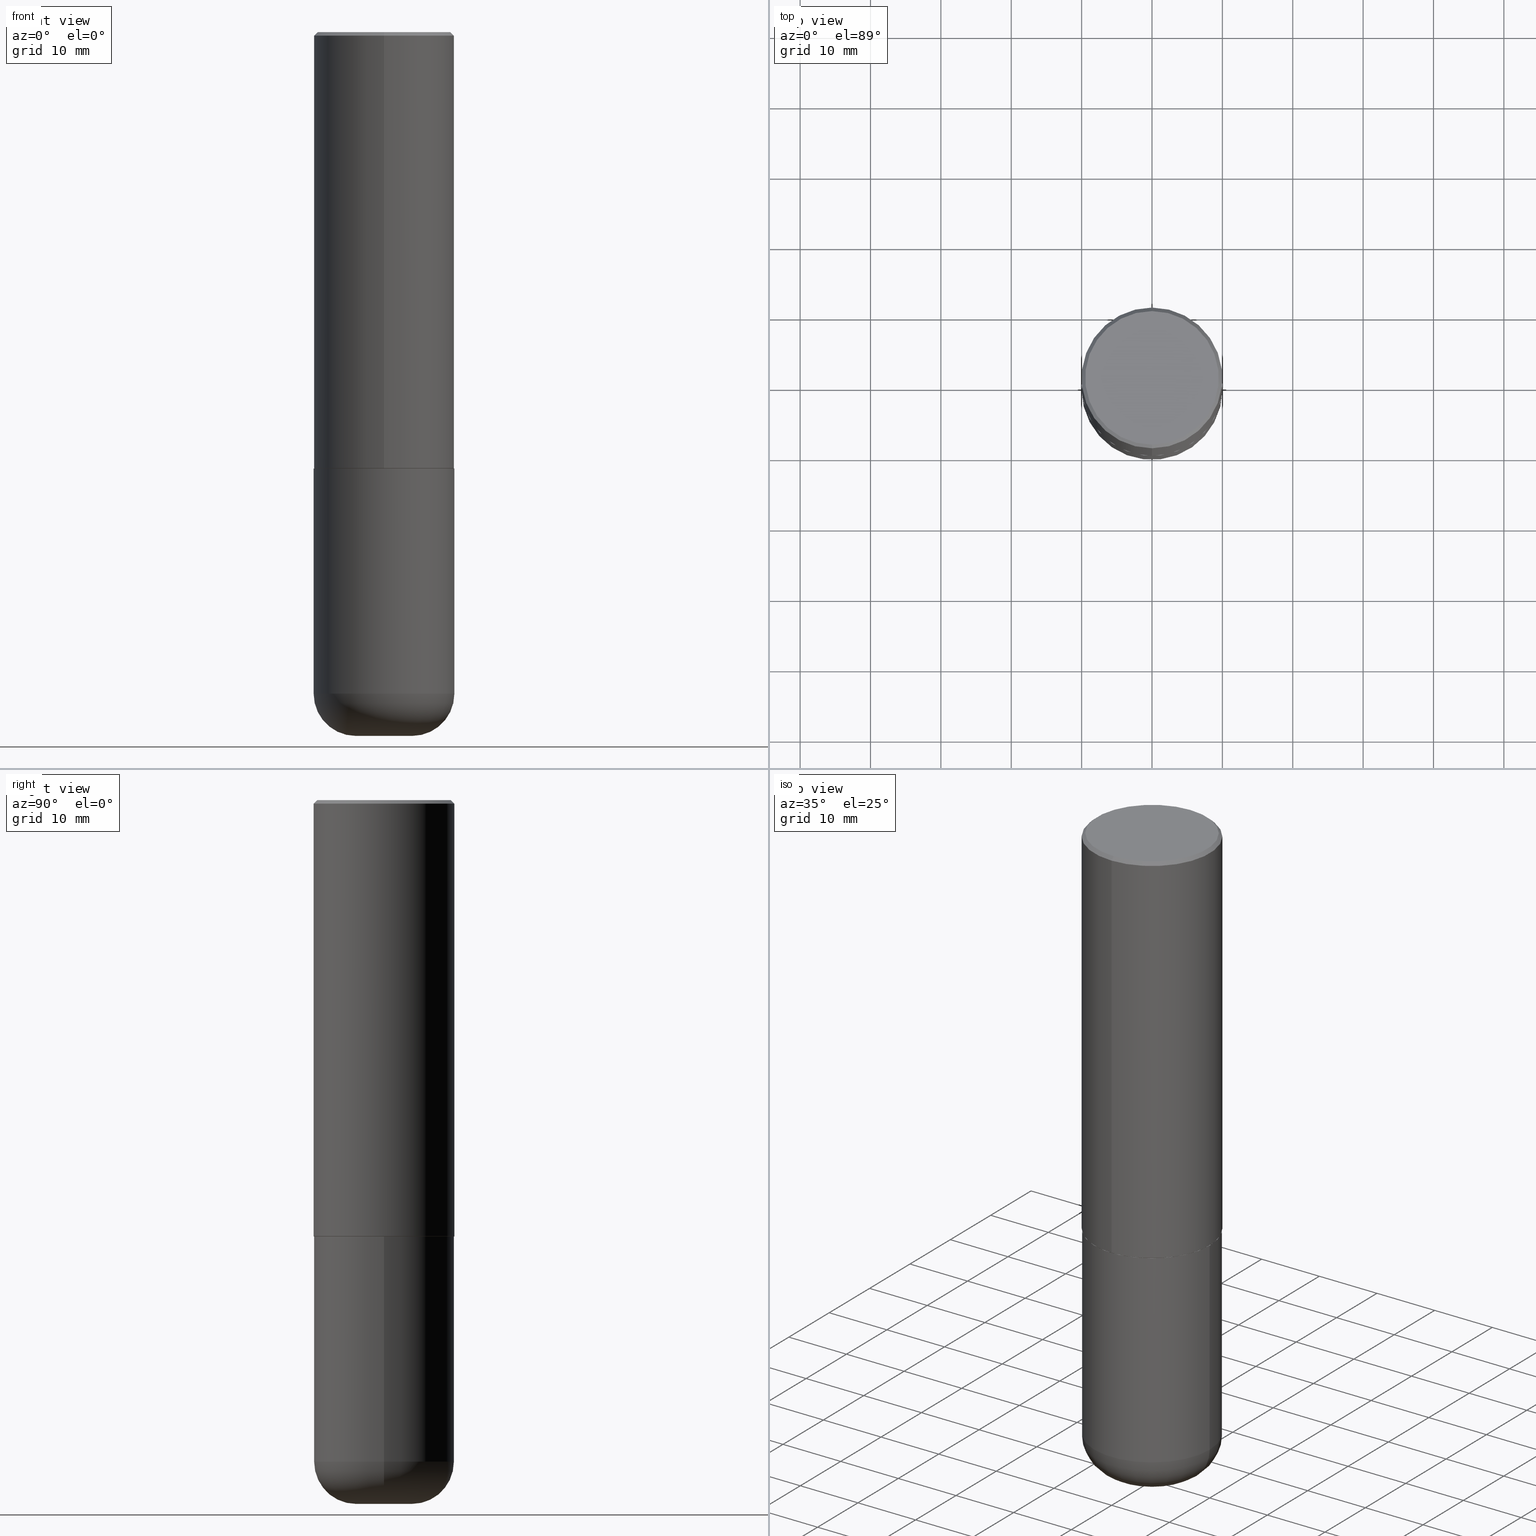
[diagram: canonical four-view strip — front | top / right | iso, engineering-drawing reading convention]
A machine part, canonical four-view strip (front | top / right | iso — engineering-drawing reading convention). The complete STEP part file that produces these views, byte-faithful:
ISO-10303-21;
HEADER;
FILE_DESCRIPTION (( 'STEP AP203' ),
    '1' );
FILE_NAME ('42648.STEP',
    '2024-03-03T22:42:33',
    ( '' ),
    ( '' ),
    'SwSTEP 2.0',
    'SolidWorks 2023',
    '' );
FILE_SCHEMA (( 'CONFIG_CONTROL_DESIGN' ));
ENDSEC;

DATA;
#1 = DIRECTION ( 'NONE',  ( -2.445468806185136597E-29, 3.491481338843145583E-15, 1.000000000000000000 ) ) ;
#2 = DIRECTION ( 'NONE',  ( 6.982962677686265133E-15, 1.000000000000000000, -3.491137977679279424E-15 ) ) ;
#3 = DIRECTION ( 'NONE',  ( 1.000000000000000000, -6.982962677686269866E-15, 0.000000000000000000 ) ) ;
#4 = DIRECTION ( 'NONE',  ( 1.000000000000000000, -6.982962677686268288E-15, 4.883557194083112901E-29 ) ) ;
#5 = TOROIDAL_SURFACE ( 'NONE', #405, 0.1575000000000000289, 0.2361999999999999933 ) ;
#6 = DIRECTION ( 'NONE',  ( -6.982962677686265133E-15, -1.000000000000000000, 3.478288761986584267E-15 ) ) ;
#7 = VERTEX_POINT ( 'NONE', #385 ) ;
#8 = CARTESIAN_POINT ( 'NONE',  ( 9.050190957929953666E-29, -1.292127413879071357E-14, -3.700800000000000090 ) ) ;
#9 = LINE ( 'NONE', #161, #166 ) ;
#10 = ADVANCED_FACE ( 'NONE', ( #221 ), #91, .F. ) ;
#11 = DIRECTION ( 'NONE',  ( -2.445468806185136597E-29, 3.491481338843145583E-15, 1.000000000000000000 ) ) ;
#12 = PERSON_AND_ORGANIZATION_ROLE ( 'classification_officer' ) ;
#13 = DIRECTION ( 'NONE',  ( 2.438088387897960049E-29, -3.491481338843145188E-15, -1.000000000000000000 ) ) ;
#14 = VECTOR ( 'NONE', #190, 39.37007874015748143 ) ;
#15 = CARTESIAN_POINT ( 'NONE',  ( -0.1575000000000000566, -1.137536230515325427E-14, -3.937000000000000277 ) ) ;
#16 = CARTESIAN_POINT ( 'NONE',  ( -2.742209443527336854E-15, -0.3927000000000085422, -2.440899999999999181 ) ) ;
#17 = FACE_OUTER_BOUND ( 'NONE', #312, .T. ) ;
#18 = CIRCLE ( 'NONE', #80, 0.3937000000000000499 ) ;
#19 = VECTOR ( 'NONE', #329, 39.37007874015748143 ) ;
#20 = AXIS2_PLACEMENT_3D ( 'NONE', #309, #266, #401 ) ;
#21 = ORIENTED_EDGE ( 'NONE', *, *, #23, .F. ) ;
#22 =( LENGTH_UNIT ( ) NAMED_UNIT ( * ) SI_UNIT ( $, .METRE. ) );
#23 = EDGE_CURVE ( 'NONE', #380, #294, #18, .T. ) ;
#24 = DIRECTION ( 'NONE',  ( 1.000000000000000000, -6.982962677686265133E-15, 0.000000000000000000 ) ) ;
#25 = AXIS2_PLACEMENT_3D ( 'NONE', #275, #410, #180 ) ;
#26 = ORIENTED_EDGE ( 'NONE', *, *, #290, .F. ) ;
#27 = DIRECTION ( 'NONE',  ( -6.982962677686265922E-15, -1.000000000000000000, 3.469453890861393995E-15 ) ) ;
#28 = EDGE_CURVE ( 'NONE', #57, #140, #346, .T. ) ;
#29 = DIRECTION ( 'NONE',  ( -2.445468806185136597E-29, 3.491481338843145583E-15, 1.000000000000000000 ) ) ;
#30 = DIRECTION ( 'NONE',  ( -2.446922510361644554E-29, 3.489399551722682834E-15, 1.000000000000000000 ) ) ;
#31 = APPROVAL_STATUS ( 'not_yet_approved' ) ;
#32 = ORIENTED_EDGE ( 'NONE', *, *, #28, .T. ) ;
#33 = CIRCLE ( 'NONE', #264, 0.2361999999999999933 ) ;
#34 = CARTESIAN_POINT ( 'NONE',  ( 9.627810689950883669E-29, -1.374596203102546341E-14, -3.937000000000000277 ) ) ;
#35 = ORIENTED_EDGE ( 'NONE', *, *, #53, .F. ) ;
#36 = ADVANCED_FACE ( 'NONE', ( #354 ), #141, .T. ) ;
#37 = COORDINATED_UNIVERSAL_TIME_OFFSET ( 5, 0, .BEHIND. ) ;
#38 = DIRECTION ( 'NONE',  ( -2.446922510361644554E-29, 3.489399551722683229E-15, 1.000000000000000000 ) ) ;
#39 = CIRCLE ( 'NONE', #207, 0.1575000000000000566 ) ;
#40 = DIRECTION ( 'NONE',  ( -1.000000000000000000, 6.982962677686265922E-15, -4.876176775795935793E-29 ) ) ;
#41 = EDGE_CURVE ( 'NONE', #85, #111, #33, .T. ) ;
#42 = COORDINATED_UNIVERSAL_TIME_OFFSET ( 5, 0, .BEHIND. ) ;
#43 = AXIS2_PLACEMENT_3D ( 'NONE', #202, #397, #72 ) ;
#44 =( NAMED_UNIT ( * ) PLANE_ANGLE_UNIT ( ) SI_UNIT ( $, .RADIAN. ) );
#45 = APPROVAL_PERSON_ORGANIZATION ( #327, #291, #399 ) ;
#46 = APPLICATION_CONTEXT ( 'configuration controlled 3d designs of mechanical parts and assemblies' ) ;
#47 = DATE_AND_TIME ( #239, #414 ) ;
#48 = FACE_OUTER_BOUND ( 'NONE', #372, .T. ) ;
#49 = EDGE_LOOP ( 'NONE', ( #276, #245 ) ) ;
#50 = CARTESIAN_POINT ( 'NONE',  ( 0.3937000000000000499, -1.127154920618731776E-14, -2.440900000000000070 ) ) ;
#51 = CONICAL_SURFACE ( 'NONE', #103, 0.3937000000000000499, 0.7853981633974461696 ) ;
#52 = EDGE_LOOP ( 'NONE', ( #333, #336, #21, #409 ) ) ;
#53 = EDGE_CURVE ( 'NONE', #89, #111, #404, .T. ) ;
#54 = PERSON_AND_ORGANIZATION ( #182, #332 ) ;
#55 = ORIENTED_EDGE ( 'NONE', *, *, #386, .F. ) ;
#56 = EDGE_LOOP ( 'NONE', ( #322, #208, #223, #35 ) ) ;
#57 = VERTEX_POINT ( 'NONE', #257 ) ;
#58 = CARTESIAN_POINT ( 'NONE',  ( 0.000000000000000000, 0.000000000000000000, 0.000000000000000000 ) ) ;
#59 = CARTESIAN_POINT ( 'NONE',  ( 0.3936999999999999389, -1.567046654499579837E-14, -3.700800000000000090 ) ) ;
#60 = AXIS2_PLACEMENT_3D ( 'NONE', #69, #416, #65 ) ;
#61 = ADVANCED_FACE ( 'NONE', ( #119 ), #374, .T. ) ;
#62 = AXIS2_PLACEMENT_3D ( 'NONE', #273, #110, #176 ) ;
#63 = CYLINDRICAL_SURFACE ( 'NONE', #319, 0.3936999999999999389 ) ;
#64 = COORDINATED_UNIVERSAL_TIME_OFFSET ( 5, 0, .BEHIND. ) ;
#65 = DIRECTION ( 'NONE',  ( -6.982962677686265133E-15, -1.000000000000000000, 3.491137977679279424E-15 ) ) ;
#66 = CC_DESIGN_DATE_AND_TIME_ASSIGNMENT ( #270, #295, ( #367 ) ) ;
#67 = CARTESIAN_POINT ( 'NONE',  ( 5.972693155541738897E-29, -8.517275365799897338E-15, -2.440900000000000514 ) ) ;
#68 = FACE_OUTER_BOUND ( 'NONE', #181, .T. ) ;
#69 = CARTESIAN_POINT ( 'NONE',  ( 4.893845020723310268E-31, -6.978799103445395153E-17, -0.02000000000000008715 ) ) ;
#70 = CIRCLE ( 'NONE', #212, 0.3736999999999999211 ) ;
#71 = CC_DESIGN_APPROVAL ( #291, ( #123 ) ) ;
#72 = DIRECTION ( 'NONE',  ( 1.000000000000000000, -6.982962677686267499E-15, 0.000000000000000000 ) ) ;
#73 = CARTESIAN_POINT ( 'NONE',  ( 5.972693155541738897E-29, -8.517275365799895761E-15, -2.440900000000000070 ) ) ;
#74 = PERSON_AND_ORGANIZATION_ROLE ( 'design_supplier' ) ;
#75 = CARTESIAN_POINT ( 'NONE',  ( -2.749192406205024841E-15, -0.3937000000000087652, -2.439899999999998847 ) ) ;
#76 = AXIS2_PLACEMENT_3D ( 'NONE', #289, #147, #282 ) ;
#77 = LOCAL_TIME ( 17, 42, 33.00000000000000000, #37 ) ;
#78 = CARTESIAN_POINT ( 'NONE',  ( -0.3936999999999999389, 2.797406750687513998E-15, -1.936584745033356455E-29 ) ) ;
#79 = PERSON_AND_ORGANIZATION ( #182, #332 ) ;
#80 = AXIS2_PLACEMENT_3D ( 'NONE', #349, #357, #390 ) ;
#81 = EDGE_CURVE ( 'NONE', #240, #213, #251, .T. ) ;
#82 = ORIENTED_EDGE ( 'NONE', *, *, #262, .F. ) ;
#83 = EDGE_LOOP ( 'NONE', ( #55, #375 ) ) ;
#84 = EDGE_LOOP ( 'NONE', ( #175, #271, #144, #415 ) ) ;
#85 = VERTEX_POINT ( 'NONE', #88 ) ;
#86 = ADVANCED_FACE ( 'NONE', ( #287 ), #155, .T. ) ;
#87 = ORIENTED_EDGE ( 'NONE', *, *, #148, .F. ) ;
#88 = CARTESIAN_POINT ( 'NONE',  ( 0.1575000000000000566, -1.484577865276105326E-14, -3.937000000000000277 ) ) ;
#89 = VERTEX_POINT ( 'NONE', #316 ) ;
#90 = APPROVAL_DATE_TIME ( #384, #138 ) ;
#91 = PLANE ( 'NONE',  #121 ) ;
#92 = DIRECTION ( 'NONE',  ( -2.445468806185136597E-29, 3.491481338843145583E-15, 1.000000000000000000 ) ) ;
#93 = ADVANCED_FACE ( 'NONE', ( #68 ), #314, .T. ) ;
#94 = DIRECTION ( 'NONE',  ( 5.024295867787719235E-15, 0.7071067811865017205, 0.7071067811865933139 ) ) ;
#95 = CARTESIAN_POINT ( 'NONE',  ( 0.3936999999999999389, -2.749192406205082822E-15, 1.919750796630859611E-29 ) ) ;
#96 = AXIS2_PLACEMENT_3D ( 'NONE', #134, #325, #263 ) ;
#97 = CARTESIAN_POINT ( 'NONE',  ( 2.797406750687514786E-15, 0.3937000000000001054, -1.373776603513220668E-15 ) ) ;
#98 = LINE ( 'NONE', #232, #220 ) ;
#99 = EDGE_CURVE ( 'NONE', #111, #380, #194, .T. ) ;
#100 = COORDINATED_UNIVERSAL_TIME_OFFSET ( 5, 0, .BEHIND. ) ;
#101 = EDGE_CURVE ( 'NONE', #213, #240, #368, .T. ) ;
#102 = ORIENTED_EDGE ( 'NONE', *, *, #258, .T. ) ;
#103 = AXIS2_PLACEMENT_3D ( 'NONE', #408, #317, #151 ) ;
#104 = CARTESIAN_POINT ( 'NONE',  ( 2.790301323329972943E-15, 0.3926999999999915003, -2.440900000000001846 ) ) ;
#105 = CALENDAR_DATE ( 2024, 3, 3 ) ;
#106 = DIRECTION ( 'NONE',  ( 2.438088387897960049E-29, -3.491481338843145188E-15, -1.000000000000000000 ) ) ;
#107 = ORIENTED_EDGE ( 'NONE', *, *, #308, .F. ) ;
#108 = SECURITY_CLASSIFICATION_LEVEL ( 'unclassified' ) ;
#109 = SECURITY_CLASSIFICATION ( '', '', #108 ) ;
#110 = DIRECTION ( 'NONE',  ( -2.446922510361644554E-29, 3.489399551722682834E-15, 1.000000000000000000 ) ) ;
#111 = VERTEX_POINT ( 'NONE', #59 ) ;
#112 = APPROVAL_ROLE ( '' ) ;
#113 = ORIENTED_EDGE ( 'NONE', *, *, #41, .F. ) ;
#114 = ORIENTED_EDGE ( 'NONE', *, *, #326, .T. ) ;
#115 = MECHANICAL_CONTEXT ( 'NONE', #46, 'mechanical' ) ;
#116 = PRODUCT_DEFINITION_SHAPE ( 'NONE', 'NONE',  #367 ) ;
#117 = MANIFOLD_SOLID_BREP ( 'Body-Move/Copy2[1]', #328 ) ;
#118 = DIRECTION ( 'NONE',  ( 1.000000000000000000, -6.982962677686266711E-15, 4.876176775795935793E-29 ) ) ;
#119 = FACE_OUTER_BOUND ( 'NONE', #209, .T. ) ;
#120 = PERSON_AND_ORGANIZATION ( #182, #332 ) ;
#121 = AXIS2_PLACEMENT_3D ( 'NONE', #73, #226, #152 ) ;
#122 = DIRECTION ( 'NONE',  ( -6.982962677686265922E-15, -1.000000000000000000, 3.469453890861393995E-15 ) ) ;
#123 = PRODUCT_DEFINITION_FORMATION_WITH_SPECIFIED_SOURCE ( 'ANY', '', #157, .NOT_KNOWN. ) ;
#124 = FACE_OUTER_BOUND ( 'NONE', #278, .T. ) ;
#125 = DIRECTION ( 'NONE',  ( -2.445468806185136597E-29, 3.491481338843145583E-15, 1.000000000000000000 ) ) ;
#126 = CARTESIAN_POINT ( 'NONE',  ( 9.050190957929953666E-29, -1.292127413879071357E-14, -3.700800000000000090 ) ) ;
#127 = CARTESIAN_POINT ( 'NONE',  ( 5.970246233031377205E-29, -8.513785966248174161E-15, -2.439900000000000180 ) ) ;
#128 = CC_DESIGN_PERSON_AND_ORGANIZATION_ASSIGNMENT ( #120, #388, ( #157 ) ) ;
#129 = AXIS2_PLACEMENT_3D ( 'NONE', #174, #136, #139 ) ;
#130 = CARTESIAN_POINT ( 'NONE',  ( 9.050190957929953666E-29, -1.292127413879071357E-14, -3.700800000000000090 ) ) ;
#131 = DIRECTION ( 'NONE',  ( -4.851104656540953231E-15, -0.7071067811865484609, -0.7071067811865465735 ) ) ;
#132 = AXIS2_PLACEMENT_3D ( 'NONE', #189, #30, #122 ) ;
#133 = PERSON_AND_ORGANIZATION ( #182, #332 ) ;
#134 = CARTESIAN_POINT ( 'NONE',  ( -0.1575000000000000289, -1.180216932996855439E-14, -3.700800000000000090 ) ) ;
#135 = EDGE_CURVE ( 'NONE', #140, #57, #293, .T. ) ;
#136 = DIRECTION ( 'NONE',  ( -2.446922510361644554E-29, 3.489399551722682834E-15, 1.000000000000000000 ) ) ;
#137 = VERTEX_POINT ( 'NONE', #15 ) ;
#138 = APPROVAL ( #307, 'UNSPECIFIED' ) ;
#139 = DIRECTION ( 'NONE',  ( -6.982962677686265133E-15, -1.000000000000000000, 3.478288761986584267E-15 ) ) ;
#140 = VERTEX_POINT ( 'NONE', #75 ) ;
#141 = CONICAL_SURFACE ( 'NONE', #381, 0.3937000000000000499, 0.7853981633974461696 ) ;
#142 = CARTESIAN_POINT ( 'NONE',  ( 2.749192406205083217E-15, 0.3936999999999999389, -0.02000000000000146105 ) ) ;
#143 = APPROVAL_PERSON_ORGANIZATION ( #323, #150, #160 ) ;
#144 = ORIENTED_EDGE ( 'NONE', *, *, #148, .T. ) ;
#145 = ORIENTED_EDGE ( 'NONE', *, *, #365, .T. ) ;
#146 = ORIENTED_EDGE ( 'NONE', *, *, #343, .F. ) ;
#147 = DIRECTION ( 'NONE',  ( -2.445468806185136597E-29, 3.491481338843145583E-15, 1.000000000000000000 ) ) ;
#148 = EDGE_CURVE ( 'NONE', #345, #140, #205, .T. ) ;
#149 = CARTESIAN_POINT ( 'NONE',  ( 4.893845020723310268E-31, -6.978799103445395153E-17, -0.02000000000000008715 ) ) ;
#150 = APPROVAL ( #31, 'UNSPECIFIED' ) ;
#151 = DIRECTION ( 'NONE',  ( 6.982962677686265133E-15, 1.000000000000000000, -3.491137977679279424E-15 ) ) ;
#152 = DIRECTION ( 'NONE',  ( -6.982962677686265922E-15, -1.000000000000000000, 3.489399551722683229E-15 ) ) ;
#153 = ADVANCED_FACE ( 'NONE', ( #17 ), #51, .T. ) ;
#154 = CARTESIAN_POINT ( 'NONE',  ( 5.972693155541738897E-29, -8.517275365799897338E-15, -2.440900000000000514 ) ) ;
#155 = CYLINDRICAL_SURFACE ( 'NONE', #76, 0.3936999999999999389 ) ;
#156 =( GEOMETRIC_REPRESENTATION_CONTEXT ( 3 ) GLOBAL_UNCERTAINTY_ASSIGNED_CONTEXT ( ( #281 ) ) GLOBAL_UNIT_ASSIGNED_CONTEXT ( ( #407, #44, #353 ) ) REPRESENTATION_CONTEXT ( 'NONE', 'WORKASPACE' ) );
#157 = PRODUCT ( '42648', '42648', '', ( #115 ) ) ;
#158 = DIRECTION ( 'NONE',  ( -6.982962677686265133E-15, -1.000000000000000000, 3.478288761986584267E-15 ) ) ;
#159 = DIRECTION ( 'NONE',  ( -6.982962677686266711E-15, -1.000000000000000000, 3.491481338843145583E-15 ) ) ;
#160 = APPROVAL_ROLE ( '' ) ;
#161 = CARTESIAN_POINT ( 'NONE',  ( -2.749192406205083217E-15, -0.3937000000000001054, 1.373776603513220668E-15 ) ) ;
#162 = CALENDAR_DATE ( 2024, 3, 3 ) ;
#163 = CARTESIAN_POINT ( 'NONE',  ( 2.679362779428219918E-15, 0.3736999999999999211, -1.176711201622670637E-15 ) ) ;
#164 = AXIS2_PLACEMENT_3D ( 'NONE', #127, #286, #27 ) ;
#165 = ORIENTED_EDGE ( 'NONE', *, *, #203, .T. ) ;
#166 = VECTOR ( 'NONE', #224, 39.37007874015748143 ) ;
#167 = CARTESIAN_POINT ( 'NONE',  ( -2.742209443527336854E-15, -0.3927000000000085422, -2.440899999999999181 ) ) ;
#168 = APPROVAL_DATE_TIME ( #47, #291 ) ;
#169 = PLANE ( 'NONE',  #355 ) ;
#170 = EDGE_CURVE ( 'NONE', #137, #85, #235, .T. ) ;
#171 = EDGE_LOOP ( 'NONE', ( #165, #145 ) ) ;
#172 = CONICAL_SURFACE ( 'NONE', #413, 0.3926999999999999935, 0.7853981633973801113 ) ;
#173 = ADVANCED_FACE ( 'NONE', ( #348 ), #63, .T. ) ;
#174 = CARTESIAN_POINT ( 'NONE',  ( 5.972693155541738897E-29, -8.517275365799897338E-15, -2.440900000000000514 ) ) ;
#175 = ORIENTED_EDGE ( 'NONE', *, *, #258, .F. ) ;
#176 = DIRECTION ( 'NONE',  ( -6.982962677686265133E-15, -1.000000000000000000, 3.489399551722682440E-15 ) ) ;
#177 = ORIENTED_EDGE ( 'NONE', *, *, #290, .T. ) ;
#178 = AXIS2_PLACEMENT_3D ( 'NONE', #250, #248, #378 ) ;
#179 = CC_DESIGN_SECURITY_CLASSIFICATION ( #109, ( #123 ) ) ;
#180 = DIRECTION ( 'NONE',  ( -6.982962677686265133E-15, -1.000000000000000000, 3.489399551722682834E-15 ) ) ;
#181 = EDGE_LOOP ( 'NONE', ( #107, #32, #177, #274 ) ) ;
#182 = PERSON ( 'UNSPECIFIED', 'UNSPECIFIED', 'UNSPECIFIED', ('UNSPECIFIED'), ('UNSPECIFIED'), ('UNSPECIFIED') ) ;
#183 = ORIENTED_EDGE ( 'NONE', *, *, #99, .T. ) ;
#184 = EDGE_CURVE ( 'NONE', #339, #345, #246, .T. ) ;
#185 = ORIENTED_EDGE ( 'NONE', *, *, #236, .F. ) ;
#186 = DIRECTION ( 'NONE',  ( 1.000000000000000000, 0.000000000000000000, 0.000000000000000000 ) ) ;
#187 = CIRCLE ( 'NONE', #298, 0.3936999999999999389 ) ;
#188 = VECTOR ( 'NONE', #38, 39.37007874015748143 ) ;
#189 = CARTESIAN_POINT ( 'NONE',  ( 5.970246233031377205E-29, -8.513785966248174161E-15, -2.439900000000000180 ) ) ;
#190 = DIRECTION ( 'NONE',  ( -2.445468806185136877E-29, 3.491481338843145188E-15, 1.000000000000000000 ) ) ;
#191 = DIRECTION ( 'NONE',  ( -2.446922510361644554E-29, 3.489399551722682834E-15, 1.000000000000000000 ) ) ;
#192 = CARTESIAN_POINT ( 'NONE',  ( 4.893845020723310268E-31, -6.978799103445395153E-17, -0.02000000000000008715 ) ) ;
#193 = DIRECTION ( 'NONE',  ( -2.446922510361644554E-29, 3.489399551722682834E-15, 1.000000000000000000 ) ) ;
#194 = LINE ( 'NONE', #95, #14 ) ;
#195 = CARTESIAN_POINT ( 'NONE',  ( 2.609533152651356620E-15, 0.3736999999999999211, -1.240349907050718615E-15 ) ) ;
#196 = DIRECTION ( 'NONE',  ( 2.446922510361644554E-29, -3.489399551722682834E-15, -1.000000000000000000 ) ) ;
#197 = DESIGN_CONTEXT ( 'detailed design', #222, 'design' ) ;
#198 = CARTESIAN_POINT ( 'NONE',  ( 9.627810689950883669E-29, -1.374596203102546341E-14, -3.937000000000000277 ) ) ;
#199 = PERSON_AND_ORGANIZATION ( #182, #332 ) ;
#200 = DIRECTION ( 'NONE',  ( 1.000000000000000000, -6.982962677686272233E-15, 0.000000000000000000 ) ) ;
#201 = LOCAL_TIME ( 17, 42, 33.00000000000000000, #64 ) ;
#202 = CARTESIAN_POINT ( 'NONE',  ( 5.969144809017300159E-29, -8.522356799982234543E-15, -2.440900000000000070 ) ) ;
#203 = EDGE_CURVE ( 'NONE', #313, #7, #70, .T. ) ;
#204 = CARTESIAN_POINT ( 'NONE',  ( 9.627810689950883669E-29, -1.374596203102546341E-14, -3.937000000000000277 ) ) ;
#205 = LINE ( 'NONE', #167, #362 ) ;
#206 = EDGE_CURVE ( 'NONE', #111, #89, #187, .T. ) ;
#207 = AXIS2_PLACEMENT_3D ( 'NONE', #204, #230, #200 ) ;
#208 = ORIENTED_EDGE ( 'NONE', *, *, #170, .T. ) ;
#209 = EDGE_LOOP ( 'NONE', ( #400, #338, #411, #113 ) ) ;
#210 = CYLINDRICAL_SURFACE ( 'NONE', #25, 0.3937000000000001054 ) ;
#211 = ORIENTED_EDGE ( 'NONE', *, *, #365, .F. ) ;
#212 = AXIS2_PLACEMENT_3D ( 'NONE', #288, #219, #315 ) ;
#213 = VERTEX_POINT ( 'NONE', #252 ) ;
#214 = ADVANCED_FACE ( 'NONE', ( #350 ), #172, .T. ) ;
#215 = ORIENTED_EDGE ( 'NONE', *, *, #101, .T. ) ;
#216 = CC_DESIGN_PERSON_AND_ORGANIZATION_ASSIGNMENT ( #359, #12, ( #109 ) ) ;
#217 = DIRECTION ( 'NONE',  ( -2.446922510361644554E-29, 3.489399551722682834E-15, 1.000000000000000000 ) ) ;
#218 = CLOSED_SHELL ( 'NONE', ( #214, #371, #153, #36, #93, #376, #10, #299 ) ) ;
#219 = DIRECTION ( 'NONE',  ( -2.446922510361644554E-29, 3.489399551722682834E-15, 1.000000000000000000 ) ) ;
#220 = VECTOR ( 'NONE', #131, 39.37007874015748143 ) ;
#221 = FACE_OUTER_BOUND ( 'NONE', #83, .T. ) ;
#222 = APPLICATION_CONTEXT ( 'configuration controlled 3d designs of mechanical parts and assemblies' ) ;
#223 = ORIENTED_EDGE ( 'NONE', *, *, #41, .T. ) ;
#224 = DIRECTION ( 'NONE',  ( -2.446922510361644554E-29, 3.489399551722683229E-15, 1.000000000000000000 ) ) ;
#225 = CIRCLE ( 'NONE', #43, 0.3937000000000000499 ) ;
#226 = DIRECTION ( 'NONE',  ( -2.446922510361643994E-29, 3.489399551722683229E-15, 1.000000000000000000 ) ) ;
#227 = LOCAL_TIME ( 17, 42, 33.00000000000000000, #393 ) ;
#228 = ADVANCED_BREP_SHAPE_REPRESENTATION ( '42648', ( #117, #249, #320 ), #156 ) ;
#229 = ADVANCED_FACE ( 'NONE', ( #124 ), #169, .T. ) ;
#230 = DIRECTION ( 'NONE',  ( -2.445468806185136597E-29, 3.491481338843145583E-15, 1.000000000000000000 ) ) ;
#231 = APPROVAL_DATE_TIME ( #260, #150 ) ;
#232 = CARTESIAN_POINT ( 'NONE',  ( -2.700978061722651252E-15, -0.3937000000000001054, -0.01999999999999870978 ) ) ;
#233 = ORIENTED_EDGE ( 'NONE', *, *, #81, .T. ) ;
#234 = LINE ( 'NONE', #142, #265 ) ;
#235 = CIRCLE ( 'NONE', #340, 0.1575000000000000566 ) ;
#236 = EDGE_CURVE ( 'NONE', #294, #380, #225, .T. ) ;
#237 = LINE ( 'NONE', #78, #19 ) ;
#238 = EDGE_CURVE ( 'NONE', #137, #89, #279, .T. ) ;
#239 = CALENDAR_DATE ( 2024, 3, 3 ) ;
#240 = VERTEX_POINT ( 'NONE', #360 ) ;
#241 = LOCAL_TIME ( 17, 42, 33.00000000000000000, #100 ) ;
#242 = DIRECTION ( 'NONE',  ( -1.000000000000000000, 6.982962677686265922E-15, -4.876176775795935793E-29 ) ) ;
#243 = ORIENTED_EDGE ( 'NONE', *, *, #170, .F. ) ;
#244 = EDGE_LOOP ( 'NONE', ( #341, #102, #406, #87 ) ) ;
#245 = ORIENTED_EDGE ( 'NONE', *, *, #236, .T. ) ;
#246 = CIRCLE ( 'NONE', #396, 0.3926999999999999935 ) ;
#247 = AXIS2_PLACEMENT_3D ( 'NONE', #195, #358, #392 ) ;
#248 = DIRECTION ( 'NONE',  ( -2.446922510361644554E-29, 3.489399551722682834E-15, 1.000000000000000000 ) ) ;
#249 = MANIFOLD_SOLID_BREP ( 'Body-Move/Copy2[2]', #218 ) ;
#250 = CARTESIAN_POINT ( 'NONE',  ( 0.000000000000000000, 0.000000000000000000, 0.000000000000000000 ) ) ;
#251 = CIRCLE ( 'NONE', #60, 0.3937000000000000499 ) ;
#252 = CARTESIAN_POINT ( 'NONE',  ( 2.749192406205083217E-15, 0.3936999999999999389, -0.02000000000000146105 ) ) ;
#253 = CALENDAR_DATE ( 2024, 3, 3 ) ;
#254 = CARTESIAN_POINT ( 'NONE',  ( 9.050190957929953666E-29, -1.292127413879071357E-14, -3.700800000000000090 ) ) ;
#255 = ORIENTED_EDGE ( 'NONE', *, *, #343, .T. ) ;
#256 = DIRECTION ( 'NONE',  ( -2.445468806185136597E-29, 3.491481338843145583E-15, 1.000000000000000000 ) ) ;
#257 = CARTESIAN_POINT ( 'NONE',  ( 2.797406750687545158E-15, 0.3936999999999916677, -2.439900000000001512 ) ) ;
#258 = EDGE_CURVE ( 'NONE', #339, #57, #389, .T. ) ;
#259 = CARTESIAN_POINT ( 'NONE',  ( -0.3937000000000000499, -7.924408718698959272E-15, -2.440900000000000070 ) ) ;
#260 = DATE_AND_TIME ( #162, #77 ) ;
#261 = LINE ( 'NONE', #97, #188 ) ;
#262 = EDGE_CURVE ( 'NONE', #85, #137, #39, .T. ) ;
#263 = DIRECTION ( 'NONE',  ( -1.000000000000000000, 7.105427357601005014E-15, 0.000000000000000000 ) ) ;
#264 = AXIS2_PLACEMENT_3D ( 'NONE', #318, #159, #24 ) ;
#265 = VECTOR ( 'NONE', #334, 39.37007874015748143 ) ;
#266 = DIRECTION ( 'NONE',  ( -2.446922510361644554E-29, 3.489399551722682834E-15, 1.000000000000000000 ) ) ;
#267 = CALENDAR_DATE ( 2024, 3, 3 ) ;
#268 = ORIENTED_EDGE ( 'NONE', *, *, #326, .F. ) ;
#269 = EDGE_CURVE ( 'NONE', #89, #294, #237, .T. ) ;
#270 = DATE_AND_TIME ( #267, #241 ) ;
#271 = ORIENTED_EDGE ( 'NONE', *, *, #184, .T. ) ;
#272 = CONICAL_SURFACE ( 'NONE', #129, 0.3926999999999999935, 0.7853981633973801113 ) ;
#273 = CARTESIAN_POINT ( 'NONE',  ( -3.114379616843273246E-45, 4.441217403856829071E-31, 1.272774108560953647E-16 ) ) ;
#274 = ORIENTED_EDGE ( 'NONE', *, *, #101, .F. ) ;
#275 = CARTESIAN_POINT ( 'NONE',  ( 0.000000000000000000, 0.000000000000000000, 0.000000000000000000 ) ) ;
#276 = ORIENTED_EDGE ( 'NONE', *, *, #23, .T. ) ;
#277 = ORIENTED_EDGE ( 'NONE', *, *, #81, .F. ) ;
#278 = EDGE_LOOP ( 'NONE', ( #82, #243 ) ) ;
#279 = CIRCLE ( 'NONE', #96, 0.2361999999999999933 ) ;
#280 = AXIS2_PLACEMENT_3D ( 'NONE', #330, #106, #242 ) ;
#281 = UNCERTAINTY_MEASURE_WITH_UNIT (LENGTH_MEASURE( 1.000000000000000082E-05 ), #407, 'distance_accuracy_value', 'NONE');
#282 = DIRECTION ( 'NONE',  ( 1.000000000000000000, -6.982962677686266711E-15, 4.876176775795935793E-29 ) ) ;
#283 = ORIENTED_EDGE ( 'NONE', *, *, #269, .F. ) ;
#284 = CC_DESIGN_PERSON_AND_ORGANIZATION_ASSIGNMENT ( #199, #403, ( #123 ) ) ;
#285 = CARTESIAN_POINT ( 'NONE',  ( 0.000000000000000000, 0.000000000000000000, 0.000000000000000000 ) ) ;
#286 = DIRECTION ( 'NONE',  ( -2.446922510361644554E-29, 3.489399551722682834E-15, 1.000000000000000000 ) ) ;
#287 = FACE_OUTER_BOUND ( 'NONE', #52, .T. ) ;
#288 = CARTESIAN_POINT ( 'NONE',  ( -3.114379616843273246E-45, 4.441217403856829071E-31, 1.272774108560953647E-16 ) ) ;
#289 = CARTESIAN_POINT ( 'NONE',  ( 0.000000000000000000, 0.000000000000000000, 0.000000000000000000 ) ) ;
#290 = EDGE_CURVE ( 'NONE', #140, #240, #9, .T. ) ;
#291 = APPROVAL ( #402, 'UNSPECIFIED' ) ;
#292 = FACE_OUTER_BOUND ( 'NONE', #56, .T. ) ;
#293 = CIRCLE ( 'NONE', #132, 0.3937000000000002164 ) ;
#294 = VERTEX_POINT ( 'NONE', #259 ) ;
#295 = DATE_TIME_ROLE ( 'creation_date' ) ;
#296 = FACE_OUTER_BOUND ( 'NONE', #171, .T. ) ;
#297 = PRODUCT_RELATED_PRODUCT_CATEGORY ( 'detail', '', ( #157 ) ) ;
#298 = AXIS2_PLACEMENT_3D ( 'NONE', #126, #29, #3 ) ;
#299 = ADVANCED_FACE ( 'NONE', ( #296 ), #356, .F. ) ;
#300 = FACE_OUTER_BOUND ( 'NONE', #84, .T. ) ;
#301 = EDGE_LOOP ( 'NONE', ( #283, #304, #183, #185 ) ) ;
#302 = LENGTH_MEASURE_WITH_UNIT ( LENGTH_MEASURE( 0.02539999999999999897 ), #22 );
#303 = DIRECTION ( 'NONE',  ( -4.937700262164211199E-15, -0.7071067811864968355, 0.7071067811865981989 ) ) ;
#304 = ORIENTED_EDGE ( 'NONE', *, *, #53, .T. ) ;
#305 = AXIS2_PLACEMENT_3D ( 'NONE', #8, #125, #4 ) ;
#306 = CIRCLE ( 'NONE', #62, 0.3736999999999999211 ) ;
#307 = APPROVAL_STATUS ( 'not_yet_approved' ) ;
#308 = EDGE_CURVE ( 'NONE', #57, #213, #261, .T. ) ;
#309 = CARTESIAN_POINT ( 'NONE',  ( 5.972693155541738897E-29, -8.517275365799897338E-15, -2.440900000000000514 ) ) ;
#310 = PERSON_AND_ORGANIZATION_ROLE ( 'creator' ) ;
#311 = ORIENTED_EDGE ( 'NONE', *, *, #203, .F. ) ;
#312 = EDGE_LOOP ( 'NONE', ( #211, #114, #233, #146 ) ) ;
#313 = VERTEX_POINT ( 'NONE', #163 ) ;
#314 = CYLINDRICAL_SURFACE ( 'NONE', #178, 0.3937000000000001054 ) ;
#315 = DIRECTION ( 'NONE',  ( -6.982962677686265133E-15, -1.000000000000000000, 3.489399551722682440E-15 ) ) ;
#316 = CARTESIAN_POINT ( 'NONE',  ( -0.3936999999999999389, -1.012386738810319800E-14, -3.700800000000000090 ) ) ;
#317 = DIRECTION ( 'NONE',  ( 2.446922510361644554E-29, -3.489399551722682834E-15, -1.000000000000000000 ) ) ;
#318 = CARTESIAN_POINT ( 'NONE',  ( 0.1575000000000000289, -1.402109076052630027E-14, -3.700800000000000090 ) ) ;
#319 = AXIS2_PLACEMENT_3D ( 'NONE', #58, #1, #118 ) ;
#320 = AXIS2_PLACEMENT_3D ( 'NONE', #285, #342, #186 ) ;
#321 = ADVANCED_FACE ( 'NONE', ( #292 ), #5, .T. ) ;
#322 = ORIENTED_EDGE ( 'NONE', *, *, #238, .F. ) ;
#323 = PERSON_AND_ORGANIZATION ( #182, #332 ) ;
#324 = APPLICATION_PROTOCOL_DEFINITION ( 'international standard', 'config_control_design', 1994, #222 ) ;
#325 = DIRECTION ( 'NONE',  ( 7.105427357601001859E-15, 1.000000000000000000, -3.491481338843145583E-15 ) ) ;
#326 = EDGE_CURVE ( 'NONE', #7, #240, #98, .T. ) ;
#327 = PERSON_AND_ORGANIZATION ( #182, #332 ) ;
#328 = CLOSED_SHELL ( 'NONE', ( #86, #61, #395, #173, #321, #229 ) ) ;
#329 = DIRECTION ( 'NONE',  ( -2.445468806185136877E-29, 3.491481338843145188E-15, 1.000000000000000000 ) ) ;
#330 = CARTESIAN_POINT ( 'NONE',  ( 5.969144809017300159E-29, -8.522356799982234543E-15, -2.440900000000000070 ) ) ;
#331 = VECTOR ( 'NONE', #94, 39.37007874015748143 ) ;
#332 = ORGANIZATION ( 'UNSPECIFIED', 'UNSPECIFIED', '' ) ;
#333 = ORIENTED_EDGE ( 'NONE', *, *, #206, .T. ) ;
#334 = DIRECTION ( 'NONE',  ( 4.937700262164536998E-15, 0.7071067811865435759, -0.7071067811865514585 ) ) ;
#335 = CC_DESIGN_PERSON_AND_ORGANIZATION_ASSIGNMENT ( #54, #310, ( #367 ) ) ;
#336 = ORIENTED_EDGE ( 'NONE', *, *, #269, .T. ) ;
#337 = PLANE ( 'NONE',  #280 ) ;
#338 = ORIENTED_EDGE ( 'NONE', *, *, #238, .T. ) ;
#339 = VERTEX_POINT ( 'NONE', #394 ) ;
#340 = AXIS2_PLACEMENT_3D ( 'NONE', #34, #256, #377 ) ;
#341 = ORIENTED_EDGE ( 'NONE', *, *, #386, .T. ) ;
#342 = DIRECTION ( 'NONE',  ( 0.000000000000000000, 0.000000000000000000, 1.000000000000000000 ) ) ;
#343 = EDGE_CURVE ( 'NONE', #313, #213, #234, .T. ) ;
#344 = DIRECTION ( 'NONE',  ( -6.982962677686265133E-15, -1.000000000000000000, 3.491137977679279424E-15 ) ) ;
#345 = VERTEX_POINT ( 'NONE', #16 ) ;
#346 = CIRCLE ( 'NONE', #164, 0.3937000000000002164 ) ;
#347 = APPROVAL_PERSON_ORGANIZATION ( #79, #138, #112 ) ;
#348 = FACE_OUTER_BOUND ( 'NONE', #301, .T. ) ;
#349 = CARTESIAN_POINT ( 'NONE',  ( 5.969144809017300159E-29, -8.522356799982234543E-15, -2.440900000000000070 ) ) ;
#350 = FACE_OUTER_BOUND ( 'NONE', #244, .T. ) ;
#351 = SHAPE_DEFINITION_REPRESENTATION ( #116, #228 ) ;
#352 = DIRECTION ( 'NONE',  ( 1.000000000000000000, -6.982962677686269866E-15, 0.000000000000000000 ) ) ;
#353 =( NAMED_UNIT ( * ) SI_UNIT ( $, .STERADIAN. ) SOLID_ANGLE_UNIT ( ) );
#354 = FACE_OUTER_BOUND ( 'NONE', #412, .T. ) ;
#355 = AXIS2_PLACEMENT_3D ( 'NONE', #198, #13, #40 ) ;
#356 = PLANE ( 'NONE',  #247 ) ;
#357 = DIRECTION ( 'NONE',  ( -2.445468806185136597E-29, 3.491481338843145583E-15, 1.000000000000000000 ) ) ;
#358 = DIRECTION ( 'NONE',  ( 2.446922510361643994E-29, -3.489399551722683229E-15, -1.000000000000000000 ) ) ;
#359 = PERSON_AND_ORGANIZATION ( #182, #332 ) ;
#360 = CARTESIAN_POINT ( 'NONE',  ( -2.700978061722651252E-15, -0.3937000000000001054, -0.01999999999999870978 ) ) ;
#361 = DATE_TIME_ROLE ( 'classification_date' ) ;
#362 = VECTOR ( 'NONE', #303, 39.37007874015748143 ) ;
#363 = DIRECTION ( 'NONE',  ( 1.000000000000000000, -6.982962677686268288E-15, 4.883557194083112901E-29 ) ) ;
#364 = CC_DESIGN_APPROVAL ( #138, ( #109 ) ) ;
#365 = EDGE_CURVE ( 'NONE', #7, #313, #306, .T. ) ;
#366 = DATE_AND_TIME ( #105, #227 ) ;
#367 = PRODUCT_DEFINITION ( 'UNKNOWN', '', #123, #197 ) ;
#368 = CIRCLE ( 'NONE', #391, 0.3937000000000000499 ) ;
#369 = CC_DESIGN_APPROVAL ( #150, ( #367 ) ) ;
#370 = ORIENTED_EDGE ( 'NONE', *, *, #135, .T. ) ;
#371 = ADVANCED_FACE ( 'NONE', ( #48 ), #210, .T. ) ;
#372 = EDGE_LOOP ( 'NONE', ( #370, #387, #277, #26 ) ) ;
#373 = FACE_OUTER_BOUND ( 'NONE', #49, .T. ) ;
#374 = TOROIDAL_SURFACE ( 'NONE', #305, 0.1575000000000000289, 0.2361999999999999933 ) ;
#375 = ORIENTED_EDGE ( 'NONE', *, *, #184, .F. ) ;
#376 = ADVANCED_FACE ( 'NONE', ( #300 ), #272, .T. ) ;
#377 = DIRECTION ( 'NONE',  ( 1.000000000000000000, -6.982962677686272233E-15, 0.000000000000000000 ) ) ;
#378 = DIRECTION ( 'NONE',  ( -6.982962677686265133E-15, -1.000000000000000000, 3.489399551722682834E-15 ) ) ;
#379 = CC_DESIGN_DATE_AND_TIME_ASSIGNMENT ( #366, #361, ( #109 ) ) ;
#380 = VERTEX_POINT ( 'NONE', #50 ) ;
#381 = AXIS2_PLACEMENT_3D ( 'NONE', #149, #196, #2 ) ;
#382 = AXIS2_PLACEMENT_3D ( 'NONE', #254, #92, #352 ) ;
#383 = CIRCLE ( 'NONE', #20, 0.3926999999999999935 ) ;
#384 = DATE_AND_TIME ( #253, #201 ) ;
#385 = CARTESIAN_POINT ( 'NONE',  ( -2.632373081744935921E-15, -0.3736999999999999211, 1.431266023334861564E-15 ) ) ;
#386 = EDGE_CURVE ( 'NONE', #345, #339, #383, .T. ) ;
#387 = ORIENTED_EDGE ( 'NONE', *, *, #308, .T. ) ;
#388 = PERSON_AND_ORGANIZATION_ROLE ( 'design_owner' ) ;
#389 = LINE ( 'NONE', #104, #331 ) ;
#390 = DIRECTION ( 'NONE',  ( 1.000000000000000000, -6.982962677686267499E-15, 0.000000000000000000 ) ) ;
#391 = AXIS2_PLACEMENT_3D ( 'NONE', #192, #217, #344 ) ;
#392 = DIRECTION ( 'NONE',  ( 6.982962677686265922E-15, 1.000000000000000000, -3.489399551722683229E-15 ) ) ;
#393 = COORDINATED_UNIVERSAL_TIME_OFFSET ( 5, 0, .BEHIND. ) ;
#394 = CARTESIAN_POINT ( 'NONE',  ( 2.793854037008773841E-15, 0.3926999999999915003, -2.440900000000001846 ) ) ;
#395 = ADVANCED_FACE ( 'NONE', ( #373 ), #337, .F. ) ;
#396 = AXIS2_PLACEMENT_3D ( 'NONE', #154, #193, #158 ) ;
#397 = DIRECTION ( 'NONE',  ( -2.445468806185136597E-29, 3.491481338843145583E-15, 1.000000000000000000 ) ) ;
#398 = DIMENSIONAL_EXPONENTS ( 1.000000000000000000, 0.000000000000000000, 0.000000000000000000, 0.000000000000000000, 0.000000000000000000, 0.000000000000000000, 0.000000000000000000 ) ;
#399 = APPROVAL_ROLE ( '' ) ;
#400 = ORIENTED_EDGE ( 'NONE', *, *, #262, .T. ) ;
#401 = DIRECTION ( 'NONE',  ( -6.982962677686265133E-15, -1.000000000000000000, 3.478288761986584267E-15 ) ) ;
#402 = APPROVAL_STATUS ( 'not_yet_approved' ) ;
#403 = PERSON_AND_ORGANIZATION_ROLE ( 'creator' ) ;
#404 = CIRCLE ( 'NONE', #382, 0.3936999999999999389 ) ;
#405 = AXIS2_PLACEMENT_3D ( 'NONE', #130, #11, #363 ) ;
#406 = ORIENTED_EDGE ( 'NONE', *, *, #135, .F. ) ;
#407 =( CONVERSION_BASED_UNIT ( 'INCH', #302 ) LENGTH_UNIT ( ) NAMED_UNIT ( #398 ) );
#408 = CARTESIAN_POINT ( 'NONE',  ( 4.893845020723310268E-31, -6.978799103445395153E-17, -0.02000000000000008715 ) ) ;
#409 = ORIENTED_EDGE ( 'NONE', *, *, #99, .F. ) ;
#410 = DIRECTION ( 'NONE',  ( -2.446922510361644554E-29, 3.489399551722682834E-15, 1.000000000000000000 ) ) ;
#411 = ORIENTED_EDGE ( 'NONE', *, *, #206, .F. ) ;
#412 = EDGE_LOOP ( 'NONE', ( #268, #311, #255, #215 ) ) ;
#413 = AXIS2_PLACEMENT_3D ( 'NONE', #67, #191, #6 ) ;
#414 = LOCAL_TIME ( 17, 42, 33.00000000000000000, #42 ) ;
#415 = ORIENTED_EDGE ( 'NONE', *, *, #28, .F. ) ;
#416 = DIRECTION ( 'NONE',  ( -2.446922510361644554E-29, 3.489399551722682834E-15, 1.000000000000000000 ) ) ;
#417 = CC_DESIGN_PERSON_AND_ORGANIZATION_ASSIGNMENT ( #133, #74, ( #123 ) ) ;
#418 = APPLICATION_PROTOCOL_DEFINITION ( 'international standard', 'config_control_design', 1994, #46 ) ;
ENDSEC;
END-ISO-10303-21;
